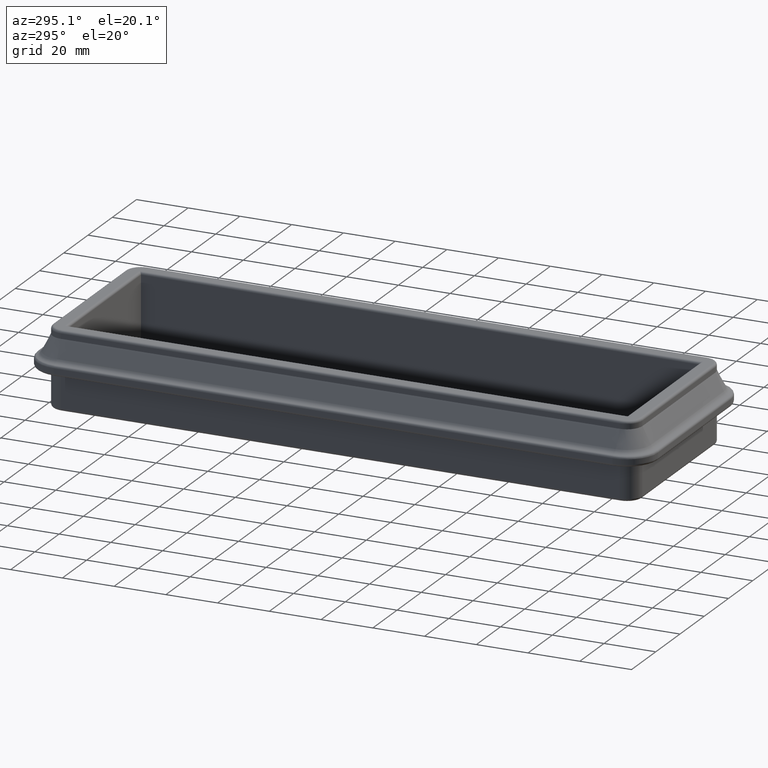
[diagram: clean part render]
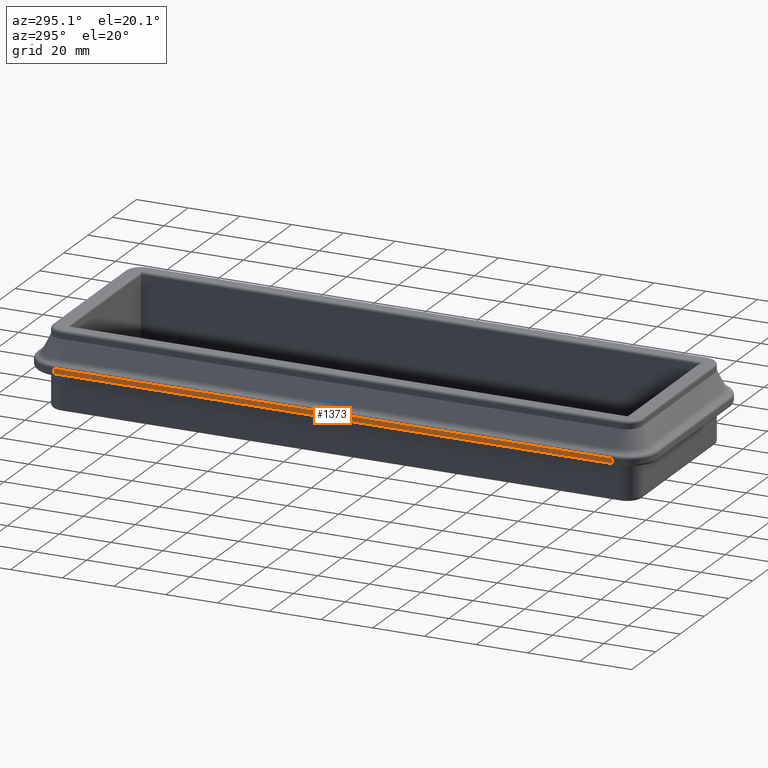
[diagram: same view with one face highlighted and labeled with its STEP entity id]
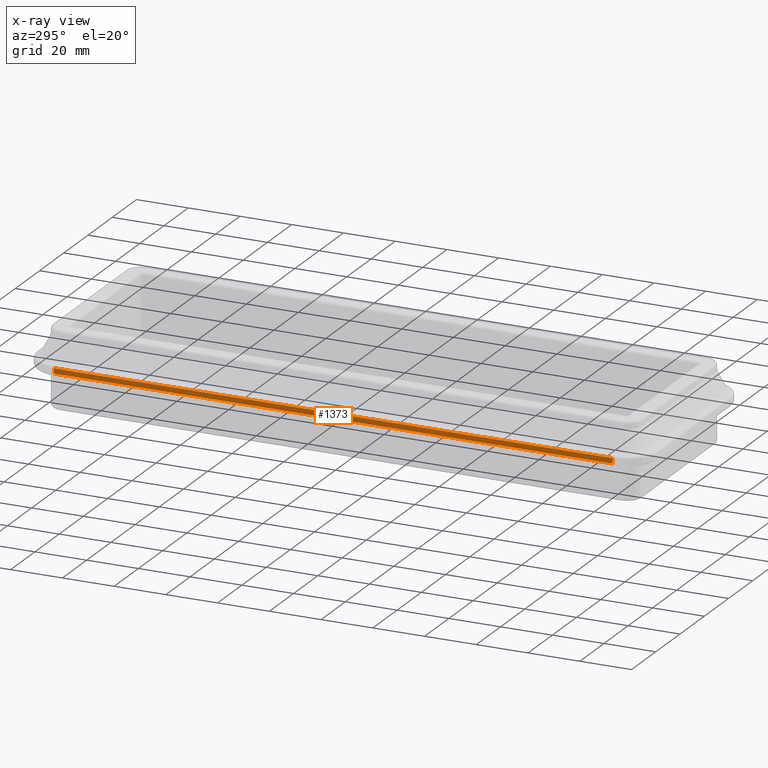
[diagram: x-ray of the same camera — body ghosted, the highlighted face saturated]
A machine part, auxiliary view. The second image highlights one B-rep face of the part: STEP entity #1373.
The next image is the same camera in x-ray: the body ghosted, the highlighted face saturated — about 0% of this face is hidden behind the body in this view.
In plain terms, the highlighted planar face has unit normal (-1, -0, 0).
Its self-contained STEP definition (entity closure, byte-faithful):
#32=PLANE('',#1548);
#116=FACE_OUTER_BOUND('',#212,.T.);
#212=EDGE_LOOP('',(#1050,#1051,#1052,#1053));
#306=LINE('',#2325,#406);
#313=LINE('',#2355,#413);
#314=LINE('',#2359,#414);
#315=LINE('',#2360,#415);
#406=VECTOR('',#1850,10.);
#413=VECTOR('',#1889,10.);
#414=VECTOR('',#1894,10.);
#415=VECTOR('',#1895,10.);
#622=VERTEX_POINT('',#2319);
#623=VERTEX_POINT('',#2323);
#630=VERTEX_POINT('',#2354);
#631=VERTEX_POINT('',#2358);
#765=EDGE_CURVE('',#622,#623,#306,.T.);
#780=EDGE_CURVE('',#623,#630,#313,.T.);
#782=EDGE_CURVE('',#622,#631,#314,.T.);
#783=EDGE_CURVE('',#630,#631,#315,.T.);
#1050=ORIENTED_EDGE('',*,*,#765,.F.);
#1051=ORIENTED_EDGE('',*,*,#782,.T.);
#1052=ORIENTED_EDGE('',*,*,#783,.F.);
#1053=ORIENTED_EDGE('',*,*,#780,.F.);
#1373=ADVANCED_FACE('',(#116),#32,.T.);
#1548=AXIS2_PLACEMENT_3D('',#2357,#1892,#1893);
#1850=DIRECTION('',(-3.08395284618099E-16,1.,0.));
#1889=DIRECTION('',(0.,0.,1.));
#1892=DIRECTION('center_axis',(-1.,-3.08395284618099E-16,0.));
#1893=DIRECTION('ref_axis',(0.,0.,1.));
#1894=DIRECTION('',(0.,0.,1.));
#1895=DIRECTION('',(3.08395284618099E-16,-1.,0.));
#2319=CARTESIAN_POINT('',(-42.,-108.,0.999999999999974));
#2323=CARTESIAN_POINT('',(-42.,108.,0.999999999999974));
#2325=CARTESIAN_POINT('',(-42.,1.66841848978392E-14,0.999999999999974));
#2354=CARTESIAN_POINT('',(-42.,108.,2.99999999999998));
#2355=CARTESIAN_POINT('',(-42.,108.,-2.1802339087941E-14));
#2357=CARTESIAN_POINT('Origin',(-42.,-108.,-2.1802339087941E-14));
#2358=CARTESIAN_POINT('',(-42.,-108.,2.99999999999998));
#2359=CARTESIAN_POINT('',(-42.,-108.,-2.1802339087941E-14));
#2360=CARTESIAN_POINT('',(-42.,1.76093707516935E-14,2.99999999999998));